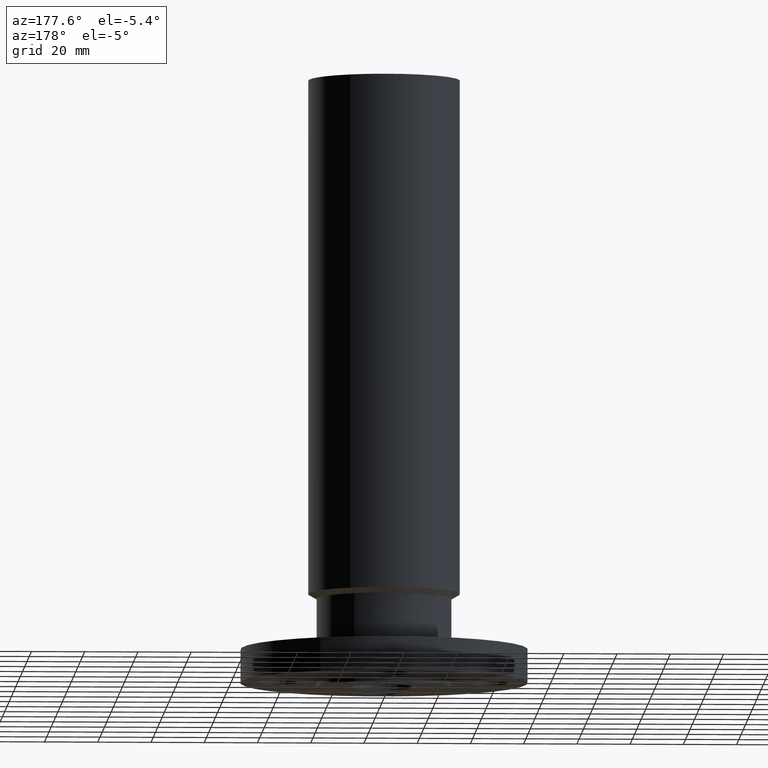
[diagram: clean part render]
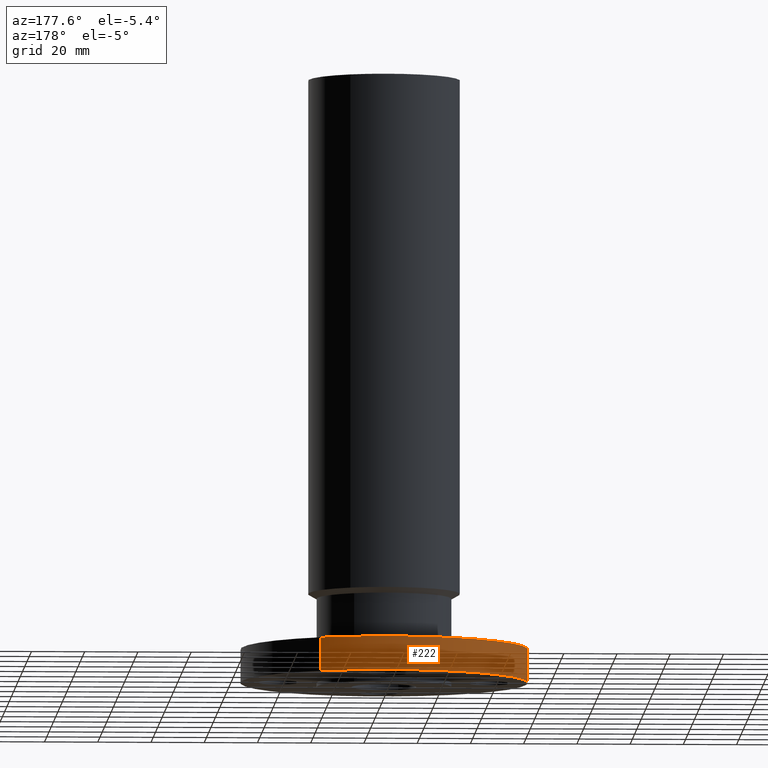
[diagram: same view with one face highlighted and labeled with its STEP entity id]
A machine part, auxiliary view. The second image highlights one B-rep face of the part: STEP entity #222.
In plain terms, the highlighted cylindrical surface (partial cylindrical patch) has radius 53.975 mm, axis along (0, 0, -1).
Its self-contained STEP definition (entity closure, byte-faithful):
#82=AXIS2_PLACEMENT_3D('Circle Axis2P3D',#80,#81,$) ;
#195=AXIS2_PLACEMENT_3D('Cylinder Axis2P3D',#192,#193,#194) ;
#206=AXIS2_PLACEMENT_3D('Circle Axis2P3D',#204,#205,$) ;
#80=CARTESIAN_POINT('Axis2P3D Location',(0.,0.,0.)) ;
#84=CARTESIAN_POINT('Vertex',(-1.01877926954,-1.86486294402,0.)) ;
#86=CARTESIAN_POINT('Vertex',(1.01877926954,1.86486294402,0.)) ;
#192=CARTESIAN_POINT('Axis2P3D Location',(0.,0.,4.43750000002)) ;
#197=CARTESIAN_POINT('Line Origine',(-1.01877926954,-1.86486294402,0.248750000001)) ;
#201=CARTESIAN_POINT('Vertex',(-1.01877926954,-1.86486294402,0.497500000002)) ;
#204=CARTESIAN_POINT('Axis2P3D Location',(0.,0.,0.497500000002)) ;
#208=CARTESIAN_POINT('Vertex',(1.01877926954,1.86486294402,0.497500000002)) ;
#211=CARTESIAN_POINT('Line Origine',(1.01877926954,1.86486294402,0.248750000001)) ;
#81=DIRECTION('Axis2P3D Direction',(0.,0.,-0.0393700787402)) ;
#193=DIRECTION('Axis2P3D Direction',(0.,0.,-0.0393700787402)) ;
#194=DIRECTION('Axis2P3D XDirection',(0.0188750212049,0.0345504945626,0.)) ;
#198=DIRECTION('Vector Direction',(0.,0.,-0.0393700787402)) ;
#205=DIRECTION('Axis2P3D Direction',(0.,0.,-0.0393700787402)) ;
#212=DIRECTION('Vector Direction',(0.,0.,-0.0393700787402)) ;
#199=VECTOR('Line Direction',#198,0.0393700787402) ;
#213=VECTOR('Line Direction',#212,0.0393700787402) ;
#217=ORIENTED_EDGE('',*,*,#88,.F.) ;
#218=ORIENTED_EDGE('',*,*,#203,.T.) ;
#219=ORIENTED_EDGE('',*,*,#210,.T.) ;
#220=ORIENTED_EDGE('',*,*,#215,.F.) ;
#222=ADVANCED_FACE('PartBody',(#221),#196,.T.) ;
#83=CIRCLE('generated circle',#82,2.12500000001) ;
#207=CIRCLE('generated circle',#206,2.12500000001) ;
#196=CYLINDRICAL_SURFACE('generated cylinder',#195,2.12500000001) ;
#88=EDGE_CURVE('',#85,#87,#83,.T.) ;
#203=EDGE_CURVE('',#85,#202,#200,.F.) ;
#210=EDGE_CURVE('',#202,#209,#207,.T.) ;
#215=EDGE_CURVE('',#87,#209,#214,.F.) ;
#216=EDGE_LOOP('',(#217,#218,#219,#220)) ;
#221=FACE_OUTER_BOUND('',#216,.T.) ;
#200=LINE('Line',#197,#199) ;
#214=LINE('Line',#211,#213) ;
#85=VERTEX_POINT('',#84) ;
#87=VERTEX_POINT('',#86) ;
#202=VERTEX_POINT('',#201) ;
#209=VERTEX_POINT('',#208) ;